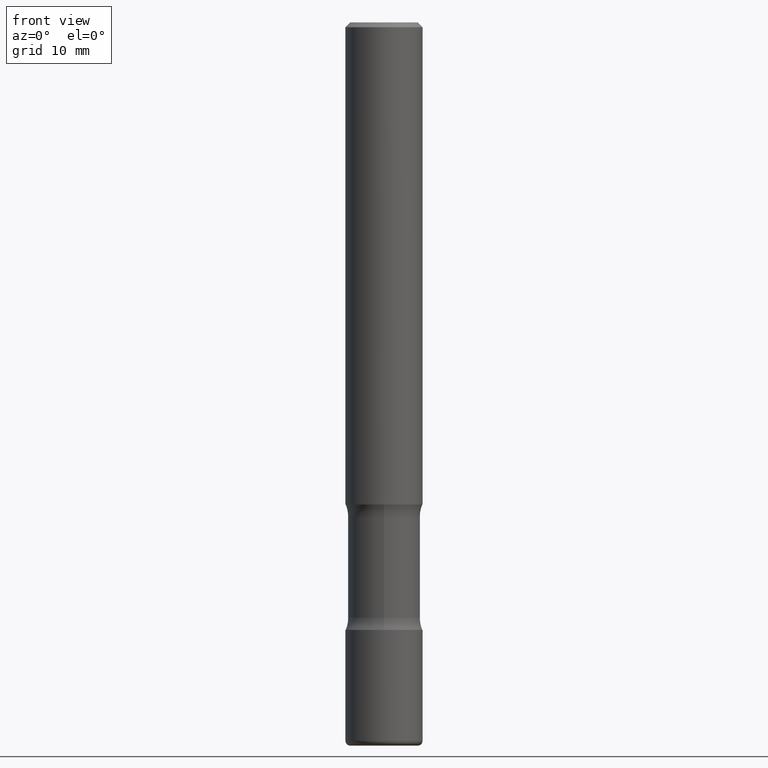
[diagram: clean part render]
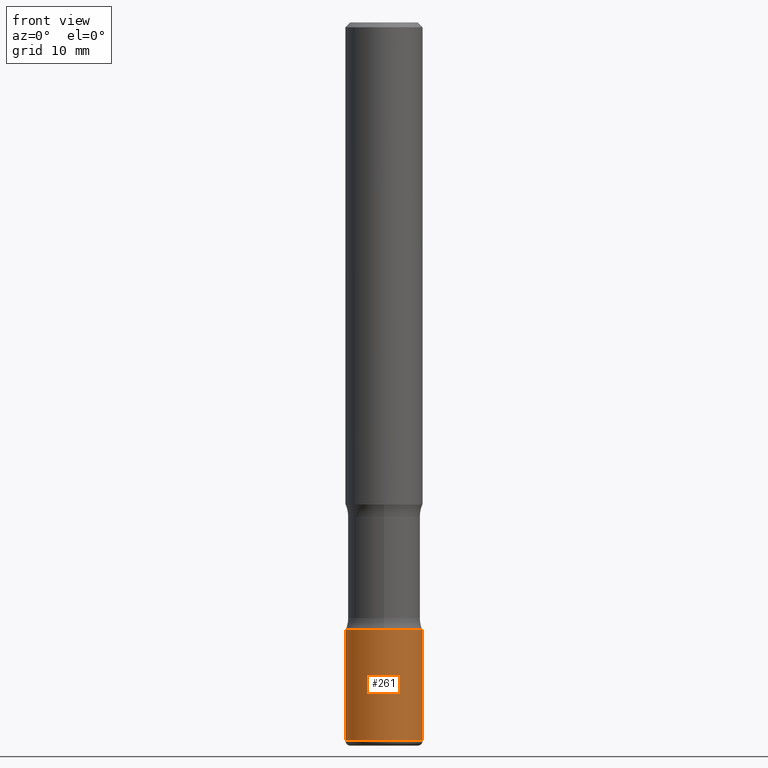
[diagram: same view with one face highlighted and labeled with its STEP entity id]
A machine part, front view. The second image highlights one B-rep face of the part: STEP entity #261.
In plain terms, the highlighted cylindrical surface (partial cylindrical patch) has radius 4.0005 mm, axis along (-0, 0, 1).
Its self-contained STEP definition (entity closure, byte-faithful):
#49 = AXIS2_PLACEMENT_3D ( 'NONE', #123, #211, #291 ) ;
#56 = CIRCLE ( 'NONE', #141, 0.1575000000000001399 ) ;
#61 = ORIENTED_EDGE ( 'NONE', *, *, #212, .T. ) ;
#77 = CARTESIAN_POINT ( 'NONE',  ( -0.1575000000000001399, -8.331462305091523914E-15, -2.480399999999999494 ) ) ;
#79 = DIRECTION ( 'NONE',  ( -2.445468806185136877E-29, 3.491481338843145188E-15, 1.000000000000000000 ) ) ;
#83 = VECTOR ( 'NONE', #79, 39.37007874015748143 ) ;
#123 = CARTESIAN_POINT ( 'NONE',  ( 0.000000000000000000, 0.000000000000000000, 0.000000000000000000 ) ) ;
#128 = FACE_OUTER_BOUND ( 'NONE', #268, .T. ) ;
#135 = VERTEX_POINT ( 'NONE', #77 ) ;
#141 = AXIS2_PLACEMENT_3D ( 'NONE', #433, #309, #223 ) ;
#183 = VERTEX_POINT ( 'NONE', #252 ) ;
#198 = CARTESIAN_POINT ( 'NONE',  ( 0.1575000000000001399, -1.099816621735587875E-15, 7.679978421878605039E-30 ) ) ;
#205 = EDGE_CURVE ( 'NONE', #416, #533, #297, .T. ) ;
#211 = DIRECTION ( 'NONE',  ( -2.445468806185136597E-29, 3.491481338843145583E-15, 1.000000000000000000 ) ) ;
#212 = EDGE_CURVE ( 'NONE', #183, #416, #236, .T. ) ;
#223 = DIRECTION ( 'NONE',  ( 1.000000000000000000, -6.982962677686268288E-15, 0.000000000000000000 ) ) ;
#236 = CIRCLE ( 'NONE', #545, 0.1575000000000001399 ) ;
#252 = CARTESIAN_POINT ( 'NONE',  ( -0.1575000000000000844, -9.121759106138672895E-15, -2.933100000000000041 ) ) ;
#261 = ADVANCED_FACE ( 'NONE', ( #128 ), #475, .T. ) ;
#268 = EDGE_LOOP ( 'NONE', ( #434, #61, #315, #523 ) ) ;
#271 = EDGE_CURVE ( 'NONE', #183, #135, #345, .T. ) ;
#291 = DIRECTION ( 'NONE',  ( 1.000000000000000000, -6.982962677686265922E-15, 4.876176775795935232E-29 ) ) ;
#297 = LINE ( 'NONE', #198, #83 ) ;
#309 = DIRECTION ( 'NONE',  ( -2.445468806185136597E-29, 3.491481338843145583E-15, 1.000000000000000000 ) ) ;
#315 = ORIENTED_EDGE ( 'NONE', *, *, #205, .T. ) ;
#337 = EDGE_CURVE ( 'NONE', #135, #533, #56, .T. ) ;
#342 = DIRECTION ( 'NONE',  ( -2.445468806185136877E-29, 3.491481338843145188E-15, 1.000000000000000000 ) ) ;
#345 = LINE ( 'NONE', #443, #536 ) ;
#416 = VERTEX_POINT ( 'NONE', #495 ) ;
#418 = DIRECTION ( 'NONE',  ( 1.000000000000000000, -6.982962677686268288E-15, 0.000000000000000000 ) ) ;
#421 = CARTESIAN_POINT ( 'NONE',  ( 7.172804555421624566E-29, -1.024086391496083050E-14, -2.933100000000000041 ) ) ;
#433 = CARTESIAN_POINT ( 'NONE',  ( 6.065740826861612418E-29, -8.660270312866537270E-15, -2.480399999999999494 ) ) ;
#434 = ORIENTED_EDGE ( 'NONE', *, *, #271, .F. ) ;
#443 = CARTESIAN_POINT ( 'NONE',  ( -0.1575000000000001399, 1.119104808822158787E-15, -7.747322767151482590E-30 ) ) ;
#475 = CYLINDRICAL_SURFACE ( 'NONE', #49, 0.1575000000000001399 ) ;
#495 = CARTESIAN_POINT ( 'NONE',  ( 0.1575000000000000844, -1.134068053669641877E-14, -2.933100000000000041 ) ) ;
#500 = CARTESIAN_POINT ( 'NONE',  ( 0.1575000000000001399, -9.760086934602125539E-15, -2.480399999999999494 ) ) ;
#523 = ORIENTED_EDGE ( 'NONE', *, *, #337, .F. ) ;
#533 = VERTEX_POINT ( 'NONE', #500 ) ;
#536 = VECTOR ( 'NONE', #342, 39.37007874015748143 ) ;
#545 = AXIS2_PLACEMENT_3D ( 'NONE', #421, #556, #418 ) ;
#556 = DIRECTION ( 'NONE',  ( -2.445468806185136597E-29, 3.491481338843145583E-15, 1.000000000000000000 ) ) ;